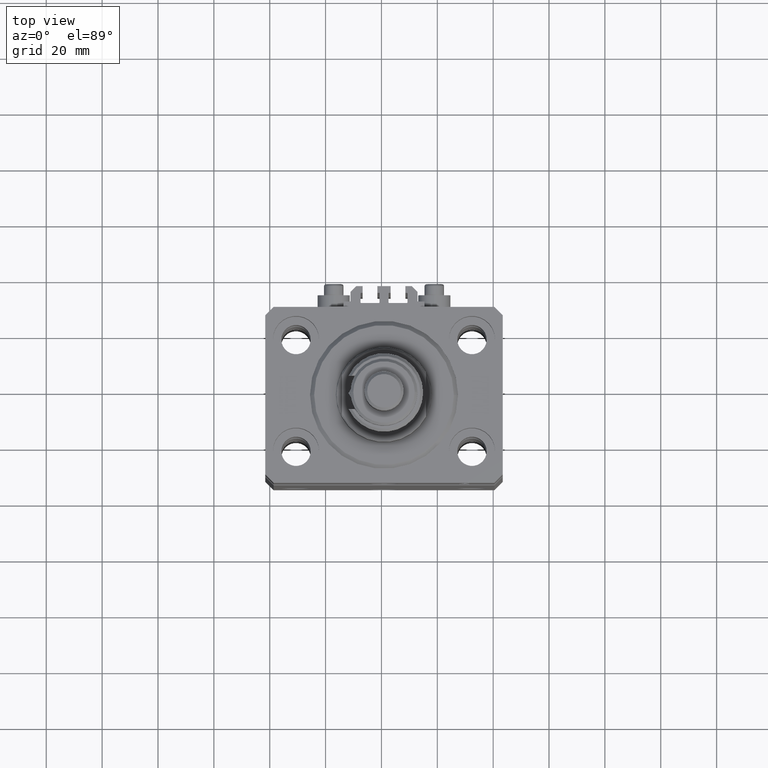
[diagram: clean part render]
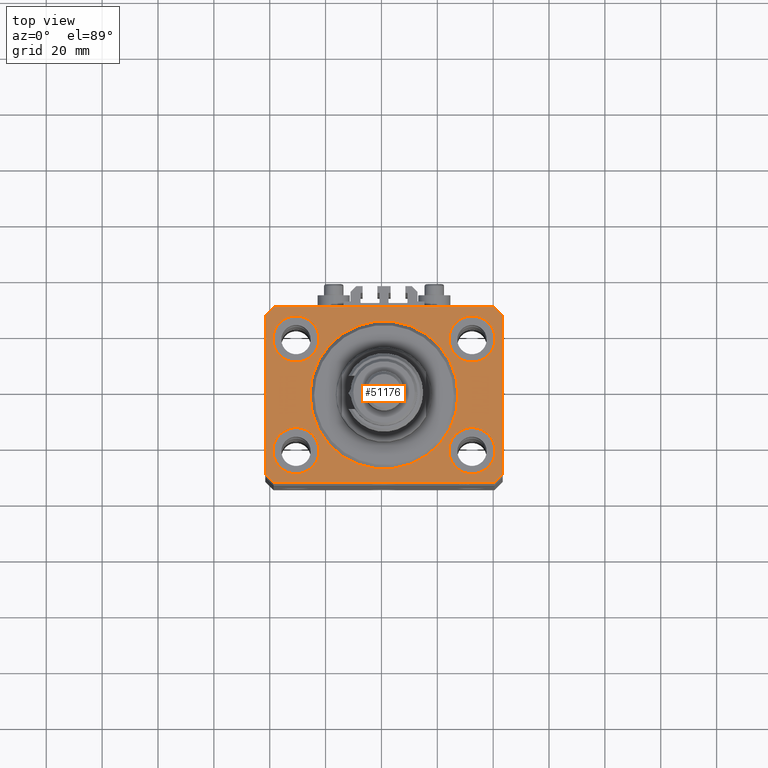
[diagram: same view with one face highlighted and labeled with its STEP entity id]
A machine part, top view. The second image highlights one B-rep face of the part: STEP entity #51176.
In plain terms, the highlighted planar face has unit normal (0, 0, 1).
Its self-contained STEP definition (entity closure, byte-faithful):
#12 = DIRECTION ( 'NONE',  ( 0.000000000000000000, 0.000000000000000000, 1.000000000000000000 ) ) ;
#287 = DIRECTION ( 'NONE',  ( 0.000000000000000000, 0.000000000000000000, 1.000000000000000000 ) ) ;
#689 = CARTESIAN_POINT ( 'NONE',  ( -39.75000000000000000, -20.00000000000000000, 0.000000000000000000 ) ) ;
#1283 = EDGE_CURVE ( 'NONE', #11258, #17956, #34836, .T. ) ;
#1588 = CARTESIAN_POINT ( 'NONE',  ( 39.50000000000056843, 31.50000000000000000, 0.000000000000000000 ) ) ;
#1715 = DIRECTION ( 'NONE',  ( 1.000000000000000000, 0.000000000000000000, 0.000000000000000000 ) ) ;
#1748 = DIRECTION ( 'NONE',  ( 0.000000000000000000, -1.000000000000000000, 0.000000000000000000 ) ) ;
#1995 = VECTOR ( 'NONE', #1748, 1000.000000000000000 ) ;
#2033 = ORIENTED_EDGE ( 'NONE', *, *, #2800, .F. ) ;
#2078 = CARTESIAN_POINT ( 'NONE',  ( 39.50000000000056843, 31.50000000000000000, 0.000000000000000000 ) ) ;
#2406 = LINE ( 'NONE', #41976, #2600 ) ;
#2600 = VECTOR ( 'NONE', #18561, 1000.000000000000000 ) ;
#2800 = EDGE_CURVE ( 'NONE', #37877, #30533, #7442, .T. ) ;
#2991 = CIRCLE ( 'NONE', #9661, 26.50000000000000355 ) ;
#4177 = CARTESIAN_POINT ( 'NONE',  ( -23.25000000000000000, -20.00000000000000000, 0.000000000000000000 ) ) ;
#4289 = ORIENTED_EDGE ( 'NONE', *, *, #42248, .F. ) ;
#4556 = CARTESIAN_POINT ( 'NONE',  ( 23.25000000000000355, -20.00000000000000000, 0.000000000000000000 ) ) ;
#4626 = CARTESIAN_POINT ( 'NONE',  ( -42.50000000000000000, -28.50000000000000000, 0.000000000000000000 ) ) ;
#4691 = FACE_BOUND ( 'NONE', #5749, .T. ) ;
#4804 = CIRCLE ( 'NONE', #10608, 8.250000000000000000 ) ;
#4927 = CARTESIAN_POINT ( 'NONE',  ( 39.74999999999999289, 20.00000000000001066, 0.000000000000000000 ) ) ;
#4948 = FACE_OUTER_BOUND ( 'NONE', #44350, .T. ) ;
#5107 = ORIENTED_EDGE ( 'NONE', *, *, #10490, .F. ) ;
#5749 = EDGE_LOOP ( 'NONE', ( #48855, #32831 ) ) ;
#5872 = ORIENTED_EDGE ( 'NONE', *, *, #49311, .T. ) ;
#6018 = AXIS2_PLACEMENT_3D ( 'NONE', #24693, #18096, #10288 ) ;
#6073 = VERTEX_POINT ( 'NONE', #32676 ) ;
#6317 = VERTEX_POINT ( 'NONE', #8686 ) ;
#7133 = EDGE_LOOP ( 'NONE', ( #38288, #4289 ) ) ;
#7351 = VERTEX_POINT ( 'NONE', #4927 ) ;
#7442 = CIRCLE ( 'NONE', #48162, 8.249999999999992895 ) ;
#7740 = VECTOR ( 'NONE', #41145, 1000.000000000000000 ) ;
#8609 = AXIS2_PLACEMENT_3D ( 'NONE', #9081, #49392, #13481 ) ;
#8619 = FACE_BOUND ( 'NONE', #46334, .T. ) ;
#8686 = CARTESIAN_POINT ( 'NONE',  ( -23.25000000000000000, 20.00000000000000000, 0.000000000000000000 ) ) ;
#9081 = CARTESIAN_POINT ( 'NONE',  ( 31.50000000000000000, -20.00000000000000000, 0.000000000000000000 ) ) ;
#9304 = CARTESIAN_POINT ( 'NONE',  ( -39.75000000000000000, 20.00000000000000000, 0.000000000000000000 ) ) ;
#9515 = EDGE_CURVE ( 'NONE', #23021, #47628, #30972, .T. ) ;
#9637 = DIRECTION ( 'NONE',  ( 0.7071067811865471286, -0.7071067811865479058, 0.000000000000000000 ) ) ;
#9661 = AXIS2_PLACEMENT_3D ( 'NONE', #39633, #24300, #27699 ) ;
#9790 = VECTOR ( 'NONE', #30389, 1000.000000000000000 ) ;
#10288 = DIRECTION ( 'NONE',  ( 1.000000000000000000, 0.000000000000000000, 0.000000000000000000 ) ) ;
#10479 = ORIENTED_EDGE ( 'NONE', *, *, #15509, .F. ) ;
#10490 = EDGE_CURVE ( 'NONE', #30533, #37877, #13527, .T. ) ;
#10608 = AXIS2_PLACEMENT_3D ( 'NONE', #11492, #287, #47658 ) ;
#11258 = VERTEX_POINT ( 'NONE', #26361 ) ;
#11492 = CARTESIAN_POINT ( 'NONE',  ( -31.50000000000000000, -20.00000000000000000, 0.000000000000000000 ) ) ;
#11616 = VERTEX_POINT ( 'NONE', #11962 ) ;
#11962 = CARTESIAN_POINT ( 'NONE',  ( -26.50000000000000355, 3.245314017740486554E-15, 0.000000000000000000 ) ) ;
#12564 = CARTESIAN_POINT ( 'NONE',  ( -39.50000000000000711, 31.50000000000000000, 0.000000000000000000 ) ) ;
#12634 = EDGE_CURVE ( 'NONE', #6317, #43245, #16024, .T. ) ;
#13095 = AXIS2_PLACEMENT_3D ( 'NONE', #20582, #20837, #40851 ) ;
#13202 = VECTOR ( 'NONE', #15044, 1000.000000000000114 ) ;
#13481 = DIRECTION ( 'NONE',  ( 1.000000000000000000, 0.000000000000000000, 0.000000000000000000 ) ) ;
#13520 = FACE_BOUND ( 'NONE', #7133, .T. ) ;
#13527 = CIRCLE ( 'NONE', #8609, 8.249999999999992895 ) ;
#13547 = ORIENTED_EDGE ( 'NONE', *, *, #19432, .T. ) ;
#13664 = EDGE_LOOP ( 'NONE', ( #34810, #39855 ) ) ;
#13892 = DIRECTION ( 'NONE',  ( 1.000000000000000000, 0.000000000000000000, 0.000000000000000000 ) ) ;
#13988 = DIRECTION ( 'NONE',  ( 1.000000000000000000, 0.000000000000000000, 0.000000000000000000 ) ) ;
#14120 = ORIENTED_EDGE ( 'NONE', *, *, #41546, .T. ) ;
#14172 = DIRECTION ( 'NONE',  ( 1.000000000000000000, 0.000000000000000000, 0.000000000000000000 ) ) ;
#14385 = AXIS2_PLACEMENT_3D ( 'NONE', #44933, #21770, #1715 ) ;
#15044 = DIRECTION ( 'NONE',  ( -0.7071067811865356934, 0.7071067811865594521, 0.000000000000000000 ) ) ;
#15509 = EDGE_CURVE ( 'NONE', #11616, #6073, #51009, .T. ) ;
#16024 = CIRCLE ( 'NONE', #6018, 8.250000000000000000 ) ;
#16131 = CARTESIAN_POINT ( 'NONE',  ( 39.74999999999999289, -20.00000000000000000, 0.000000000000000000 ) ) ;
#17198 = VECTOR ( 'NONE', #47365, 1000.000000000000000 ) ;
#17956 = VERTEX_POINT ( 'NONE', #2078 ) ;
#18096 = DIRECTION ( 'NONE',  ( 0.000000000000000000, 0.000000000000000000, 1.000000000000000000 ) ) ;
#18561 = DIRECTION ( 'NONE',  ( 1.000000000000000000, 0.000000000000000000, 0.000000000000000000 ) ) ;
#19432 = EDGE_CURVE ( 'NONE', #31548, #37613, #45284, .T. ) ;
#20118 = DIRECTION ( 'NONE',  ( -0.7071067811865471286, -0.7071067811865479058, 0.000000000000000000 ) ) ;
#20236 = ORIENTED_EDGE ( 'NONE', *, *, #43778, .T. ) ;
#20582 = CARTESIAN_POINT ( 'NONE',  ( 0.000000000000000000, 0.000000000000000000, 0.000000000000000000 ) ) ;
#20837 = DIRECTION ( 'NONE',  ( 0.000000000000000000, 0.000000000000000000, 1.000000000000000000 ) ) ;
#21426 = ORIENTED_EDGE ( 'NONE', *, *, #26058, .T. ) ;
#21753 = VERTEX_POINT ( 'NONE', #34476 ) ;
#21770 = DIRECTION ( 'NONE',  ( 0.000000000000000000, 0.000000000000000000, 1.000000000000000000 ) ) ;
#21802 = CARTESIAN_POINT ( 'NONE',  ( -42.50000000000000000, 28.50000000000000000, 0.000000000000000000 ) ) ;
#22965 = ORIENTED_EDGE ( 'NONE', *, *, #1283, .T. ) ;
#23021 = VERTEX_POINT ( 'NONE', #689 ) ;
#23336 = LINE ( 'NONE', #26471, #9790 ) ;
#24300 = DIRECTION ( 'NONE',  ( 0.000000000000000000, 0.000000000000000000, 1.000000000000000000 ) ) ;
#24693 = CARTESIAN_POINT ( 'NONE',  ( -31.50000000000000000, 20.00000000000000000, 0.000000000000000000 ) ) ;
#24996 = FACE_BOUND ( 'NONE', #13664, .T. ) ;
#26058 = EDGE_CURVE ( 'NONE', #38776, #11258, #23336, .T. ) ;
#26284 = EDGE_CURVE ( 'NONE', #47628, #23021, #4804, .T. ) ;
#26361 = CARTESIAN_POINT ( 'NONE',  ( 42.50000000000051870, 28.49999999999995381, 0.000000000000000000 ) ) ;
#26471 = CARTESIAN_POINT ( 'NONE',  ( 42.50000000000000711, -28.50000000000000355, 0.000000000000000000 ) ) ;
#26830 = CIRCLE ( 'NONE', #14385, 8.249999999999992895 ) ;
#27166 = EDGE_CURVE ( 'NONE', #43245, #6317, #49716, .T. ) ;
#27682 = LINE ( 'NONE', #12564, #48158 ) ;
#27699 = DIRECTION ( 'NONE',  ( 1.000000000000000000, 0.000000000000000000, 0.000000000000000000 ) ) ;
#28722 = CARTESIAN_POINT ( 'NONE',  ( 0.000000000000000000, 0.000000000000000000, 0.000000000000000000 ) ) ;
#28814 = VERTEX_POINT ( 'NONE', #30773 ) ;
#29220 = DIRECTION ( 'NONE',  ( 1.000000000000000000, 0.000000000000000000, 0.000000000000000000 ) ) ;
#29591 = EDGE_LOOP ( 'NONE', ( #46276, #10479 ) ) ;
#29617 = LINE ( 'NONE', #21802, #1995 ) ;
#29802 = CARTESIAN_POINT ( 'NONE',  ( -39.50000000000000711, -31.50000000000000000, 0.000000000000000000 ) ) ;
#30053 = EDGE_CURVE ( 'NONE', #36074, #28814, #27682, .T. ) ;
#30389 = DIRECTION ( 'NONE',  ( 8.886653596232072440E-15, 1.000000000000000000, 0.000000000000000000 ) ) ;
#30415 = VECTOR ( 'NONE', #9637, 1000.000000000000000 ) ;
#30533 = VERTEX_POINT ( 'NONE', #4556 ) ;
#30773 = CARTESIAN_POINT ( 'NONE',  ( -42.50000000000000000, 28.50000000000000000, 0.000000000000000000 ) ) ;
#30972 = CIRCLE ( 'NONE', #43404, 8.250000000000000000 ) ;
#30998 = CARTESIAN_POINT ( 'NONE',  ( 39.50000000000000711, -31.50000000000000000, 0.000000000000000000 ) ) ;
#31371 = ORIENTED_EDGE ( 'NONE', *, *, #30053, .T. ) ;
#31548 = VERTEX_POINT ( 'NONE', #4626 ) ;
#31888 = CIRCLE ( 'NONE', #46800, 8.249999999999992895 ) ;
#32334 = LINE ( 'NONE', #1588, #7740 ) ;
#32676 = CARTESIAN_POINT ( 'NONE',  ( 26.50000000000000355, 0.000000000000000000, 0.000000000000000000 ) ) ;
#32831 = ORIENTED_EDGE ( 'NONE', *, *, #9515, .F. ) ;
#33183 = DIRECTION ( 'NONE',  ( 0.000000000000000000, 0.000000000000000000, 1.000000000000000000 ) ) ;
#33383 = CARTESIAN_POINT ( 'NONE',  ( -39.50000000000000711, 31.50000000000000000, 0.000000000000000000 ) ) ;
#33777 = CARTESIAN_POINT ( 'NONE',  ( -31.50000000000000000, -20.00000000000000000, 0.000000000000000000 ) ) ;
#34323 = EDGE_CURVE ( 'NONE', #37613, #41316, #2406, .T. ) ;
#34476 = CARTESIAN_POINT ( 'NONE',  ( 23.25000000000000355, 20.00000000000001066, 0.000000000000000000 ) ) ;
#34810 = ORIENTED_EDGE ( 'NONE', *, *, #12634, .F. ) ;
#34836 = LINE ( 'NONE', #50693, #13202 ) ;
#35673 = CARTESIAN_POINT ( 'NONE',  ( -31.50000000000000000, 20.00000000000000000, 0.000000000000000000 ) ) ;
#35932 = DIRECTION ( 'NONE',  ( 1.000000000000000000, 0.000000000000000000, 0.000000000000000000 ) ) ;
#36074 = VERTEX_POINT ( 'NONE', #33383 ) ;
#36194 = PLANE ( 'NONE',  #13095 ) ;
#36561 = ORIENTED_EDGE ( 'NONE', *, *, #34323, .T. ) ;
#37600 = CARTESIAN_POINT ( 'NONE',  ( 31.50000000000000000, -20.00000000000000000, 0.000000000000000000 ) ) ;
#37613 = VERTEX_POINT ( 'NONE', #29802 ) ;
#37877 = VERTEX_POINT ( 'NONE', #16131 ) ;
#37990 = CARTESIAN_POINT ( 'NONE',  ( -42.50000000000000000, -28.50000000000000000, 0.000000000000000000 ) ) ;
#38288 = ORIENTED_EDGE ( 'NONE', *, *, #40998, .F. ) ;
#38776 = VERTEX_POINT ( 'NONE', #43459 ) ;
#39633 = CARTESIAN_POINT ( 'NONE',  ( 0.000000000000000000, 0.000000000000000000, 0.000000000000000000 ) ) ;
#39855 = ORIENTED_EDGE ( 'NONE', *, *, #27166, .F. ) ;
#40851 = DIRECTION ( 'NONE',  ( 1.000000000000000000, 0.000000000000000000, -0.000000000000000000 ) ) ;
#40998 = EDGE_CURVE ( 'NONE', #7351, #21753, #26830, .T. ) ;
#41145 = DIRECTION ( 'NONE',  ( -1.000000000000000000, 0.000000000000000000, 0.000000000000000000 ) ) ;
#41316 = VERTEX_POINT ( 'NONE', #50307 ) ;
#41546 = EDGE_CURVE ( 'NONE', #17956, #36074, #32334, .T. ) ;
#41976 = CARTESIAN_POINT ( 'NONE',  ( -39.50000000000000711, -31.50000000000000000, 0.000000000000000000 ) ) ;
#42214 = AXIS2_PLACEMENT_3D ( 'NONE', #35673, #12, #35932 ) ;
#42248 = EDGE_CURVE ( 'NONE', #21753, #7351, #31888, .T. ) ;
#43245 = VERTEX_POINT ( 'NONE', #9304 ) ;
#43404 = AXIS2_PLACEMENT_3D ( 'NONE', #33777, #49635, #13988 ) ;
#43459 = CARTESIAN_POINT ( 'NONE',  ( 42.50000000000000711, -28.50000000000000355, 0.000000000000000000 ) ) ;
#43725 = LINE ( 'NONE', #30998, #17198 ) ;
#43778 = EDGE_CURVE ( 'NONE', #28814, #31548, #29617, .T. ) ;
#44350 = EDGE_LOOP ( 'NONE', ( #14120, #31371, #20236, #13547, #36561, #5872, #21426, #22965 ) ) ;
#44933 = CARTESIAN_POINT ( 'NONE',  ( 31.50000000000000000, 20.00000000000001066, 0.000000000000000000 ) ) ;
#45284 = LINE ( 'NONE', #37990, #30415 ) ;
#45646 = CARTESIAN_POINT ( 'NONE',  ( 31.50000000000000000, 20.00000000000001066, 0.000000000000000000 ) ) ;
#46276 = ORIENTED_EDGE ( 'NONE', *, *, #48191, .F. ) ;
#46334 = EDGE_LOOP ( 'NONE', ( #2033, #5107 ) ) ;
#46800 = AXIS2_PLACEMENT_3D ( 'NONE', #45646, #49540, #13892 ) ;
#47365 = DIRECTION ( 'NONE',  ( 0.7071067811865483499, 0.7071067811865466846, 0.000000000000000000 ) ) ;
#47628 = VERTEX_POINT ( 'NONE', #4177 ) ;
#47658 = DIRECTION ( 'NONE',  ( 1.000000000000000000, 0.000000000000000000, 0.000000000000000000 ) ) ;
#48158 = VECTOR ( 'NONE', #20118, 1000.000000000000000 ) ;
#48162 = AXIS2_PLACEMENT_3D ( 'NONE', #37600, #33183, #14172 ) ;
#48191 = EDGE_CURVE ( 'NONE', #6073, #11616, #2991, .T. ) ;
#48413 = FACE_BOUND ( 'NONE', #29591, .T. ) ;
#48855 = ORIENTED_EDGE ( 'NONE', *, *, #26284, .F. ) ;
#48974 = DIRECTION ( 'NONE',  ( 0.000000000000000000, 0.000000000000000000, 1.000000000000000000 ) ) ;
#49311 = EDGE_CURVE ( 'NONE', #41316, #38776, #43725, .T. ) ;
#49392 = DIRECTION ( 'NONE',  ( 0.000000000000000000, 0.000000000000000000, 1.000000000000000000 ) ) ;
#49540 = DIRECTION ( 'NONE',  ( 0.000000000000000000, 0.000000000000000000, 1.000000000000000000 ) ) ;
#49635 = DIRECTION ( 'NONE',  ( 0.000000000000000000, 0.000000000000000000, 1.000000000000000000 ) ) ;
#49716 = CIRCLE ( 'NONE', #42214, 8.250000000000000000 ) ;
#50188 = AXIS2_PLACEMENT_3D ( 'NONE', #28722, #48974, #29220 ) ;
#50307 = CARTESIAN_POINT ( 'NONE',  ( 39.50000000000000711, -31.50000000000000000, 0.000000000000000000 ) ) ;
#50693 = CARTESIAN_POINT ( 'NONE',  ( 42.50000000000051870, 28.49999999999995381, 0.000000000000000000 ) ) ;
#51009 = CIRCLE ( 'NONE', #50188, 26.50000000000000355 ) ;
#51176 = ADVANCED_FACE ( 'NONE', ( #4691, #8619, #13520, #24996, #48413, #4948 ), #36194, .T. ) ;